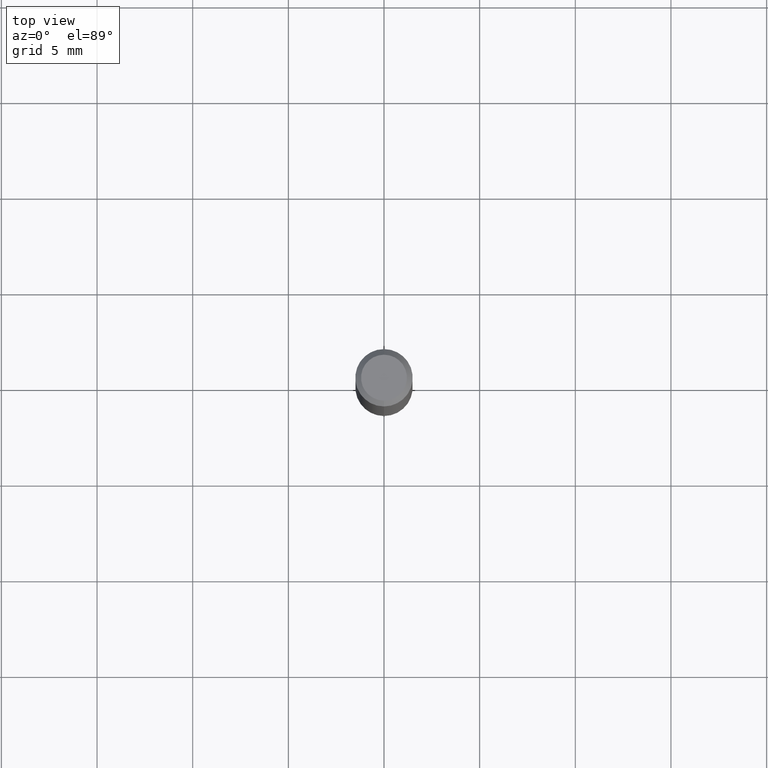
[diagram: clean part render]
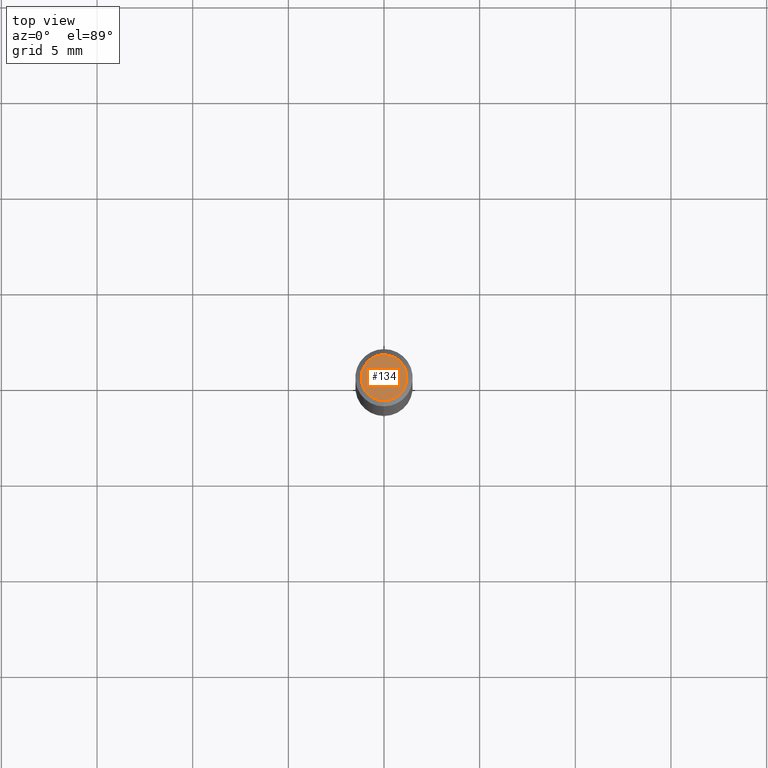
[diagram: same view with one face highlighted and labeled with its STEP entity id]
A machine part, top view. The second image highlights one B-rep face of the part: STEP entity #134.
In plain terms, the highlighted planar face has unit normal (-0, 0, 1).
Its self-contained STEP definition (entity closure, byte-faithful):
#134=ADVANCED_FACE('',(#316),#317,.T.);
#140=VERTEX_POINT('',#324);
#166=EDGE_CURVE('',#140,#196,#355,.T.);
#182=EDGE_CURVE('',#196,#140,#372,.T.);
#196=VERTEX_POINT('',#387);
#316=FACE_OUTER_BOUND('',#507,.T.);
#317=PLANE('',#508);
#324=CARTESIAN_POINT('',(0.0,1.2,0.0));
#355=CIRCLE('',#555,1.2);
#372=CIRCLE('',#577,1.2);
#387=CARTESIAN_POINT('',(1.46952762458685E-016,-1.2,0.0));
#507=EDGE_LOOP('',(#751,#752));
#508=AXIS2_PLACEMENT_3D('',#753,#754,#755);
#555=AXIS2_PLACEMENT_3D('',#816,#817,#818);
#577=AXIS2_PLACEMENT_3D('',#833,#834,#835);
#751=ORIENTED_EDGE('',*,*,#166,.F.);
#752=ORIENTED_EDGE('',*,*,#182,.F.);
#753=CARTESIAN_POINT('',(0.0,0.6,0.0));
#754=DIRECTION('',(-0.0,0.0,1.0));
#755=DIRECTION('',(0.0,-1.0,0.0));
#816=CARTESIAN_POINT('',(0.0,0.0,0.0));
#817=DIRECTION('',(0.0,0.0,-1.0));
#818=DIRECTION('',(0.0,1.0,0.0));
#833=CARTESIAN_POINT('',(0.0,0.0,0.0));
#834=DIRECTION('',(0.0,0.0,-1.0));
#835=DIRECTION('',(0.0,1.0,0.0));